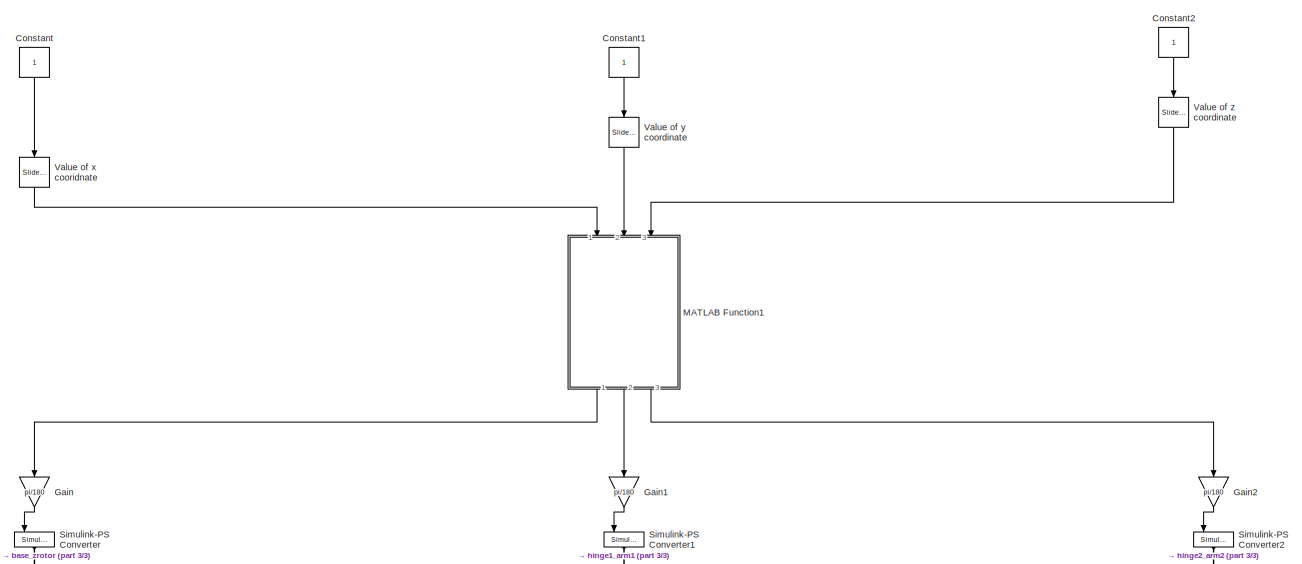
[diagram: root canvas - part 1/3, full width, top band]
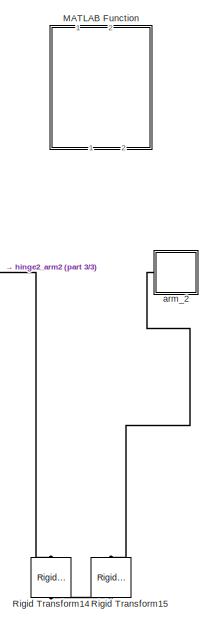
[diagram: root canvas - part 2/3, middle right region]
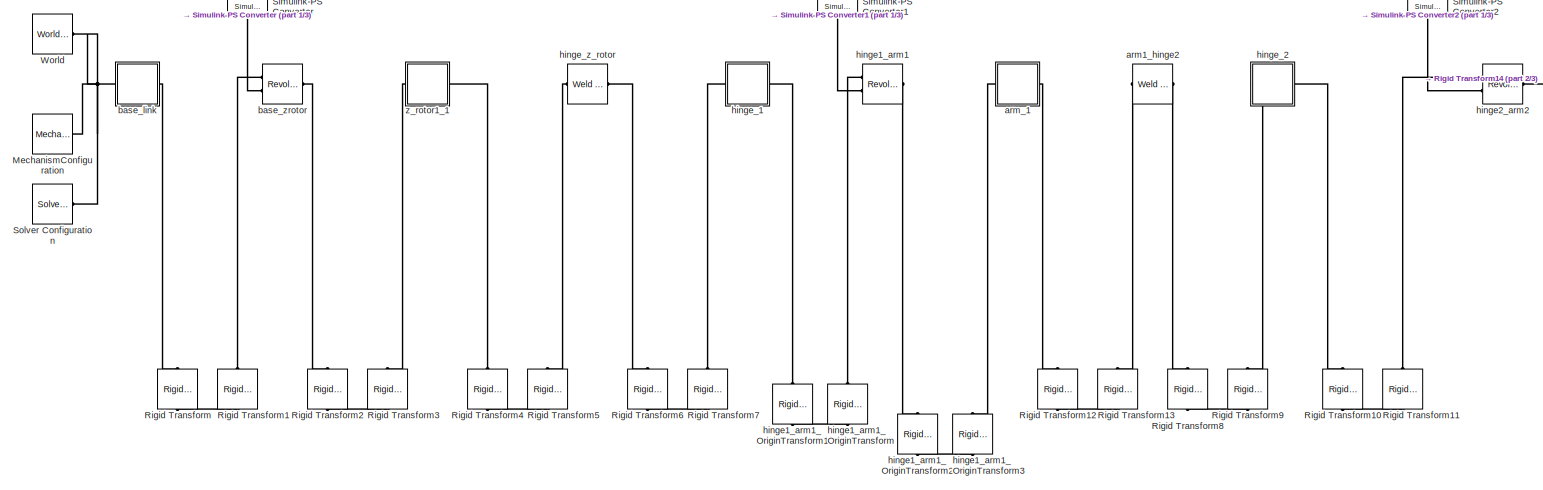
[diagram: root canvas - part 3/3, full width, bottom band]
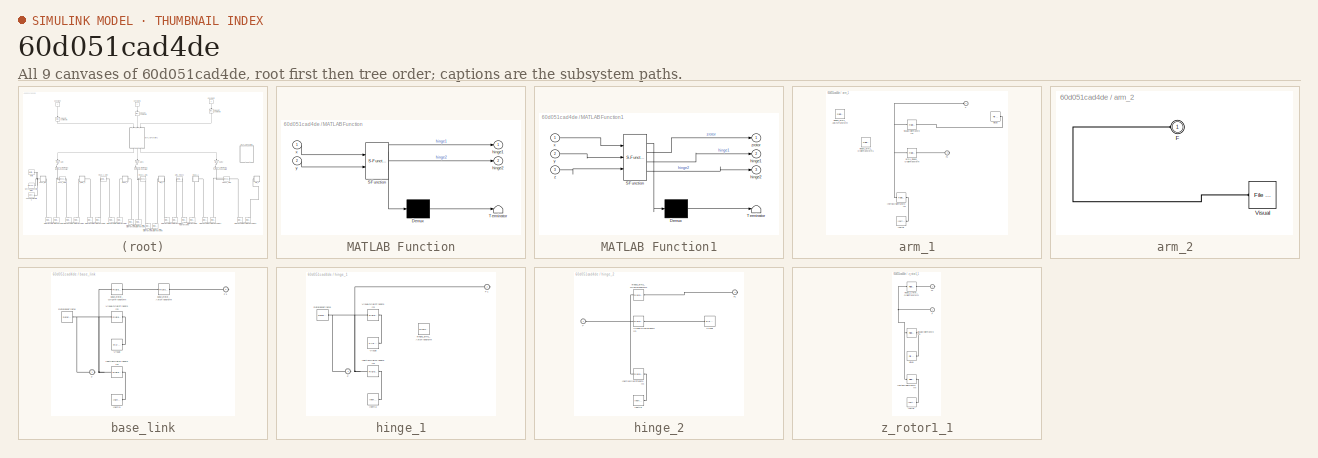
[diagram: thumbnail index - all 9 canvases of the model, root first then tree order]
MODEL slx_60d051cad4de
KIND model
CONFIG AbsTol = auto
CONFIG EnableMultiTasking = off
CONFIG FixedStep = 0.01
CONFIG MaxStep = 0.4
CONFIG MinStep = auto
CONFIG RelTol = 1e-3
CONFIG SampleTimeConstraint = Unconstrained
CONFIG SolverName = FixedStepAuto
CONFIG StartTime = 0.0
CONFIG StopTime = 40
BLOCK [Constant] Constant
  NameLocation = left
BLOCK [Constant] Constant1
  NameLocation = left
BLOCK [Constant] Constant2
  NameLocation = left
BLOCK [Gain] Gain
  Gain = pi/180
  NameLocation = left
BLOCK [Gain] Gain1
  Gain = pi/180
  NameLocation = left
BLOCK [Gain] Gain2
  Gain = pi/180
  NameLocation = left
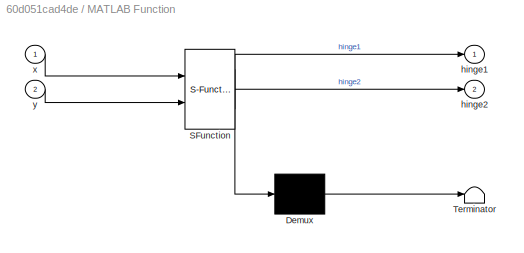
BLOCK [SubSystem] MATLAB Function
  Commented = on
  ErrorFcn = Stateflow.Translate.translate
  NameLocation = left
  PermitHierarchicalResolution = ExplicitOnly
  Ports = [2, 2]
  RequestExecContextInheritance = off
  SFBlockType = MATLAB Function
  TreatAsAtomicUnit = on
BLOCK [Demux] MATLAB Function/ Demux 
  Outputs = 1
  Ports = [1, 1]
BLOCK [S-Function] MATLAB Function/ SFunction 
  EnableBusSupport = on
  FunctionName = sf_sfun
  PortCounts = [2 3]
  Ports = [2, 3]
  SFcnIsStateOwnerBlock = off
  SFunctionDeploymentMode = off
  Tag = Stateflow S-Function 2
BLOCK [Terminator] MATLAB Function/ Terminator 
BLOCK [Outport] MATLAB Function/hinge1
BLOCK [Outport] MATLAB Function/hinge2
  Port = 2
BLOCK [Inport] MATLAB Function/x
BLOCK [Inport] MATLAB Function/y
  Port = 2
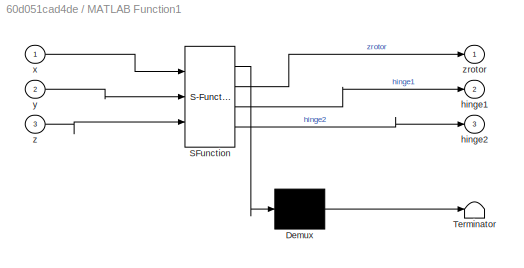
BLOCK [SubSystem] MATLAB Function1
  ErrorFcn = Stateflow.Translate.translate
  NameLocation = left
  PermitHierarchicalResolution = ExplicitOnly
  Ports = [3, 3]
  RequestExecContextInheritance = off
  SFBlockType = MATLAB Function
  TreatAsAtomicUnit = on
BLOCK [Demux] MATLAB Function1/ Demux 
  Outputs = 1
  Ports = [1, 1]
BLOCK [S-Function] MATLAB Function1/ SFunction 
  EnableBusSupport = on
  FunctionName = sf_sfun
  PortCounts = [3 4]
  Ports = [3, 4]
  SFcnIsStateOwnerBlock = off
  SFunctionDeploymentMode = off
  Tag = Stateflow S-Function 1
BLOCK [Terminator] MATLAB Function1/ Terminator 
BLOCK [Outport] MATLAB Function1/hinge1
  Port = 2
BLOCK [Outport] MATLAB Function1/hinge2
  Port = 3
BLOCK [Inport] MATLAB Function1/x
BLOCK [Inport] MATLAB Function1/y
  Port = 2
BLOCK [Inport] MATLAB Function1/z
  Port = 3
BLOCK [Outport] MATLAB Function1/zrotor
BLOCK [Reference] MechanismConfiguration  REF=sm_lib/Utilities/Mechanism
Configuration
  Ports = [0, 0, 0, 0, 0, 0, 1]
  SourceBlock = sm_lib/Utilities/Mechanism\nConfiguration
  SourceProductBaseCode = MS
  SourceType = Mechanism\nConfiguration
BLOCK [Reference] Rigid Transform  REF=sm_lib/Frames and
Transforms/Rigid
Transform
  NameLocation = left
  Ports = [0, 0, 0, 0, 0, 1, 1]
  SourceBlock = sm_lib/Frames and\nTransforms/Rigid\nTransform
  SourceProductBaseCode = MS
  SourceType = Rigid\nTransform
BLOCK [Reference] Rigid Transform1  REF=sm_lib/Frames and
Transforms/Rigid
Transform
  NameLocation = right
  Ports = [0, 0, 0, 0, 0, 1, 1]
  SourceBlock = sm_lib/Frames and\nTransforms/Rigid\nTransform
  SourceProductBaseCode = MS
  SourceType = Rigid\nTransform
BLOCK [Reference] Rigid Transform10  REF=sm_lib/Frames and
Transforms/Rigid
Transform
  NameLocation = left
  Ports = [0, 0, 0, 0, 0, 1, 1]
  SourceBlock = sm_lib/Frames and\nTransforms/Rigid\nTransform
  SourceProductBaseCode = MS
  SourceType = Rigid\nTransform
BLOCK [Reference] Rigid Transform11  REF=sm_lib/Frames and
Transforms/Rigid
Transform
  NameLocation = right
  Ports = [0, 0, 0, 0, 0, 1, 1]
  SourceBlock = sm_lib/Frames and\nTransforms/Rigid\nTransform
  SourceProductBaseCode = MS
  SourceType = Rigid\nTransform
BLOCK [Reference] Rigid Transform12  REF=sm_lib/Frames and
Transforms/Rigid
Transform
  NameLocation = left
  Ports = [0, 0, 0, 0, 0, 1, 1]
  SourceBlock = sm_lib/Frames and\nTransforms/Rigid\nTransform
  SourceProductBaseCode = MS
  SourceType = Rigid\nTransform
BLOCK [Reference] Rigid Transform13  REF=sm_lib/Frames and
Transforms/Rigid
Transform
  NameLocation = right
  Ports = [0, 0, 0, 0, 0, 1, 1]
  SourceBlock = sm_lib/Frames and\nTransforms/Rigid\nTransform
  SourceProductBaseCode = MS
  SourceType = Rigid\nTransform
BLOCK [Reference] Rigid Transform14  REF=sm_lib/Frames and
Transforms/Rigid
Transform
  NameLocation = left
  Ports = [0, 0, 0, 0, 0, 1, 1]
  SourceBlock = sm_lib/Frames and\nTransforms/Rigid\nTransform
  SourceProductBaseCode = MS
  SourceType = Rigid\nTransform
BLOCK [Reference] Rigid Transform15  REF=sm_lib/Frames and
Transforms/Rigid
Transform
  NameLocation = right
  Ports = [0, 0, 0, 0, 0, 1, 1]
  SourceBlock = sm_lib/Frames and\nTransforms/Rigid\nTransform
  SourceProductBaseCode = MS
  SourceType = Rigid\nTransform
BLOCK [Reference] Rigid Transform2  REF=sm_lib/Frames and
Transforms/Rigid
Transform
  NameLocation = left
  Ports = [0, 0, 0, 0, 0, 1, 1]
  SourceBlock = sm_lib/Frames and\nTransforms/Rigid\nTransform
  SourceProductBaseCode = MS
  SourceType = Rigid\nTransform
BLOCK [Reference] Rigid Transform3  REF=sm_lib/Frames and
Transforms/Rigid
Transform
  NameLocation = right
  Ports = [0, 0, 0, 0, 0, 1, 1]
  SourceBlock = sm_lib/Frames and\nTransforms/Rigid\nTransform
  SourceProductBaseCode = MS
  SourceType = Rigid\nTransform
BLOCK [Reference] Rigid Transform4  REF=sm_lib/Frames and
Transforms/Rigid
Transform
  NameLocation = left
  Ports = [0, 0, 0, 0, 0, 1, 1]
  SourceBlock = sm_lib/Frames and\nTransforms/Rigid\nTransform
  SourceProductBaseCode = MS
  SourceType = Rigid\nTransform
BLOCK [Reference] Rigid Transform5  REF=sm_lib/Frames and
Transforms/Rigid
Transform
  NameLocation = right
  Ports = [0, 0, 0, 0, 0, 1, 1]
  SourceBlock = sm_lib/Frames and\nTransforms/Rigid\nTransform
  SourceProductBaseCode = MS
  SourceType = Rigid\nTransform
BLOCK [Reference] Rigid Transform6  REF=sm_lib/Frames and
Transforms/Rigid
Transform
  NameLocation = left
  Ports = [0, 0, 0, 0, 0, 1, 1]
  SourceBlock = sm_lib/Frames and\nTransforms/Rigid\nTransform
  SourceProductBaseCode = MS
  SourceType = Rigid\nTransform
BLOCK [Reference] Rigid Transform7  REF=sm_lib/Frames and
Transforms/Rigid
Transform
  NameLocation = right
  Ports = [0, 0, 0, 0, 0, 1, 1]
  SourceBlock = sm_lib/Frames and\nTransforms/Rigid\nTransform
  SourceProductBaseCode = MS
  SourceType = Rigid\nTransform
BLOCK [Reference] Rigid Transform8  REF=sm_lib/Frames and
Transforms/Rigid
Transform
  NameLocation = left
  Ports = [0, 0, 0, 0, 0, 1, 1]
  SourceBlock = sm_lib/Frames and\nTransforms/Rigid\nTransform
  SourceProductBaseCode = MS
  SourceType = Rigid\nTransform
BLOCK [Reference] Rigid Transform9  REF=sm_lib/Frames and
Transforms/Rigid
Transform
  NameLocation = right
  Ports = [0, 0, 0, 0, 0, 1, 1]
  SourceBlock = sm_lib/Frames and\nTransforms/Rigid\nTransform
  SourceProductBaseCode = MS
  SourceType = Rigid\nTransform
BLOCK [Reference] Simulink-PS Converter  REF=nesl_utility/Simulink-PS
Converter
  NameLocation = left
  Ports = [3, 0, 0, 0, 0, 0, 1]
  SourceBlock = nesl_utility/Simulink-PS\nConverter
  SourceProductBaseCode = PW,SS
  SourceType = Simulink-PS\nConverter
BLOCK [Reference] Simulink-PS Converter1  REF=nesl_utility/Simulink-PS
Converter
  NameLocation = left
  Ports = [3, 0, 0, 0, 0, 0, 1]
  SourceBlock = nesl_utility/Simulink-PS\nConverter
  SourceProductBaseCode = PW,SS
  SourceType = Simulink-PS\nConverter
BLOCK [Reference] Simulink-PS Converter2  REF=nesl_utility/Simulink-PS
Converter
  NameLocation = left
  Ports = [3, 0, 0, 0, 0, 0, 1]
  SourceBlock = nesl_utility/Simulink-PS\nConverter
  SourceProductBaseCode = PW,SS
  SourceType = Simulink-PS\nConverter
BLOCK [Reference] Solver Configuration  REF=nesl_utility/Solver
Configuration
  Ports = [0, 0, 0, 0, 0, 0, 1]
  SourceBlock = nesl_utility/Solver\nConfiguration
  SourceProductBaseCode = PW,SS
  SourceType = Solver\nConfiguration
BLOCK [Reference] Value of x cooridnate  REF=simulink/Math
Operations/Slider
Gain
  NameLocation = right
  Ports = [1, 1]
  SourceBlock = simulink/Math\nOperations/Slider\nGain
  SourceProductBaseCode = SL
  SourceType = Slider Gain
BLOCK [Reference] Value of y coordinate  REF=simulink/Math
Operations/Slider
Gain
  NameLocation = left
  Ports = [1, 1]
  SourceBlock = simulink/Math\nOperations/Slider\nGain
  SourceProductBaseCode = SL
  SourceType = Slider Gain
BLOCK [Reference] Value of z coordinate  REF=simulink/Math
Operations/Slider
Gain
  NameLocation = left
  Ports = [1, 1]
  SourceBlock = simulink/Math\nOperations/Slider\nGain
  SourceProductBaseCode = SL
  SourceType = Slider Gain
BLOCK [Reference] World  REF=sm_lib/Frames and
Transforms/World Frame
  Ports = [0, 0, 0, 0, 0, 0, 1]
  SourceBlock = sm_lib/Frames and\nTransforms/World Frame
  SourceProductBaseCode = MS
  SourceType = World Frame
BLOCK [Reference] arm1_hinge2  REF=sm_lib/Joints/Weld Joint
  Ports = [0, 0, 0, 0, 0, 1, 1]
  SourceBlock = sm_lib/Joints/Weld Joint
  SourceProductBaseCode = MS
  SourceType = Weld Joint
BLOCK [SubSystem] arm_1
  Ports = [0, 0, 0, 0, 0, 1, 1]
  RequestExecContextInheritance = off
BLOCK [PMIOPort] arm_1/F
  Side = Left
BLOCK [PMIOPort] arm_1/F1
  Port = 2
  Side = Right
BLOCK [Reference] arm_1/Inertia  REF=sm_lib/Body Elements/Inertia
  Commented = on
  Ports = [0, 0, 0, 0, 0, 0, 1]
  SourceBlock = sm_lib/Body Elements/Inertia
  SourceProductBaseCode = MS
  SourceType = Inertia
BLOCK [Reference] arm_1/InertiaOriginTransform  REF=sm_lib/Frames and
Transforms/Rigid
Transform
  Commented = on
  Ports = [0, 0, 0, 0, 0, 1, 1]
  SourceBlock = sm_lib/Frames and\nTransforms/Rigid\nTransform
  SourceProductBaseCode = MS
  SourceType = Rigid\nTransform
BLOCK [Reference] arm_1/Visual  REF=sm_lib/Body Elements/File Solid
  Ports = [0, 0, 0, 0, 0, 0, 1]
  SourceBlock = sm_lib/Body Elements/File Solid
  SourceProductBaseCode = MS
  SourceType = File Solid
BLOCK [Reference] arm_1/VisualOriginTransform  REF=sm_lib/Frames and
Transforms/Rigid
Transform
  Ports = [0, 0, 0, 0, 0, 1, 1]
  SourceBlock = sm_lib/Frames and\nTransforms/Rigid\nTransform
  SourceProductBaseCode = MS
  SourceType = Rigid\nTransform
BLOCK [Reference] arm_1/arm1_hinge2_OriginTransform  REF=sm_lib/Frames and
Transforms/Rigid
Transform
  Ports = [0, 0, 0, 0, 0, 1, 1]
  SourceBlock = sm_lib/Frames and\nTransforms/Rigid\nTransform
  SourceProductBaseCode = MS
  SourceType = Rigid\nTransform
BLOCK [Reference] arm_1/hinge1_arm1_AxisInvTransform  REF=sm_lib/Frames and
Transforms/Rigid
Transform
  Commented = on
  Ports = [0, 0, 0, 0, 0, 1, 1]
  SourceBlock = sm_lib/Frames and\nTransforms/Rigid\nTransform
  SourceProductBaseCode = MS
  SourceType = Rigid\nTransform
BLOCK [Reference] arm_1/hinge1_arm1_OriginTransform1  REF=sm_lib/Frames and
Transforms/Rigid
Transform
  NameLocation = top
  Ports = [0, 0, 0, 0, 0, 1, 1]
  SourceBlock = sm_lib/Frames and\nTransforms/Rigid\nTransform
  SourceProductBaseCode = MS
  SourceType = Rigid\nTransform
BLOCK [SubSystem] arm_2
  Ports = [0, 0, 0, 0, 0, 1]
  RequestExecContextInheritance = off
BLOCK [PMIOPort] arm_2/F
  Side = Left
BLOCK [Reference] arm_2/Visual  REF=sm_lib/Body Elements/File Solid
  NameLocation = top
  Ports = [0, 0, 0, 0, 0, 0, 1]
  SourceBlock = sm_lib/Body Elements/File Solid
  SourceProductBaseCode = MS
  SourceType = File Solid
BLOCK [SubSystem] base_link
  Ports = [0, 0, 0, 0, 0, 1, 1]
  RequestExecContextInheritance = off
BLOCK [PMIOPort] base_link/F
  Side = Left
BLOCK [PMIOPort] base_link/F1
  Port = 2
  Side = Right
BLOCK [Reference] base_link/Inertia  REF=sm_lib/Body Elements/Inertia
  Commented = on
  Ports = [0, 0, 0, 0, 0, 0, 1]
  SourceBlock = sm_lib/Body Elements/Inertia
  SourceProductBaseCode = MS
  SourceType = Inertia
BLOCK [Reference] base_link/InertiaOriginTransform  REF=sm_lib/Frames and
Transforms/Rigid
Transform
  Commented = on
  Ports = [0, 0, 0, 0, 0, 1, 1]
  SourceBlock = sm_lib/Frames and\nTransforms/Rigid\nTransform
  SourceProductBaseCode = MS
  SourceType = Rigid\nTransform
BLOCK [Reference] base_link/ReferenceFrame  REF=sm_lib/Frames and
Transforms/Reference
Frame
  Commented = on
  Ports = [0, 0, 0, 0, 0, 0, 1]
  SourceBlock = sm_lib/Frames and\nTransforms/Reference\nFrame
  SourceProductBaseCode = MS
  SourceType = Reference\nFrame
BLOCK [Reference] base_link/Visual  REF=sm_lib/Body Elements/File Solid
  Ports = [0, 0, 0, 0, 0, 0, 1]
  SourceBlock = sm_lib/Body Elements/File Solid
  SourceProductBaseCode = MS
  SourceType = File Solid
BLOCK [Reference] base_link/VisualOriginTransform  REF=sm_lib/Frames and
Transforms/Rigid
Transform
  Ports = [0, 0, 0, 0, 0, 1, 1]
  SourceBlock = sm_lib/Frames and\nTransforms/Rigid\nTransform
  SourceProductBaseCode = MS
  SourceType = Rigid\nTransform
BLOCK [Reference] base_link/base_zrotor_AxisTransform  REF=sm_lib/Frames and
Transforms/Rigid
Transform
  Ports = [0, 0, 0, 0, 0, 1, 1]
  SourceBlock = sm_lib/Frames and\nTransforms/Rigid\nTransform
  SourceProductBaseCode = MS
  SourceType = Rigid\nTransform
BLOCK [Reference] base_link/base_zrotor_OriginTransform  REF=sm_lib/Frames and
Transforms/Rigid
Transform
  Ports = [0, 0, 0, 0, 0, 1, 1]
  SourceBlock = sm_lib/Frames and\nTransforms/Rigid\nTransform
  SourceProductBaseCode = MS
  SourceType = Rigid\nTransform
BLOCK [Reference] base_zrotor  REF=sm_lib/Joints/Revolute Joint
  Ports = [0, 0, 0, 0, 0, 2, 1]
  SourceBlock = sm_lib/Joints/Revolute Joint
  SourceProductBaseCode = MS
  SourceType = Revolute Joint
BLOCK [Reference] hinge1_arm1  REF=sm_lib/Joints/Revolute Joint
  Ports = [0, 0, 0, 0, 0, 2, 1]
  SourceBlock = sm_lib/Joints/Revolute Joint
  SourceProductBaseCode = MS
  SourceType = Revolute Joint
BLOCK [Reference] hinge1_arm1_OriginTransform  REF=sm_lib/Frames and
Transforms/Rigid
Transform
  NameLocation = right
  Ports = [0, 0, 0, 0, 0, 1, 1]
  SourceBlock = sm_lib/Frames and\nTransforms/Rigid\nTransform
  SourceProductBaseCode = MS
  SourceType = Rigid\nTransform
BLOCK [Reference] hinge1_arm1_OriginTransform1  REF=sm_lib/Frames and
Transforms/Rigid
Transform
  NameLocation = left
  Ports = [0, 0, 0, 0, 0, 1, 1]
  SourceBlock = sm_lib/Frames and\nTransforms/Rigid\nTransform
  SourceProductBaseCode = MS
  SourceType = Rigid\nTransform
BLOCK [Reference] hinge1_arm1_OriginTransform2  REF=sm_lib/Frames and
Transforms/Rigid
Transform
  NameLocation = left
  Ports = [0, 0, 0, 0, 0, 1, 1]
  SourceBlock = sm_lib/Frames and\nTransforms/Rigid\nTransform
  SourceProductBaseCode = MS
  SourceType = Rigid\nTransform
BLOCK [Reference] hinge1_arm1_OriginTransform3  REF=sm_lib/Frames and
Transforms/Rigid
Transform
  NameLocation = right
  Ports = [0, 0, 0, 0, 0, 1, 1]
  SourceBlock = sm_lib/Frames and\nTransforms/Rigid\nTransform
  SourceProductBaseCode = MS
  SourceType = Rigid\nTransform
BLOCK [Reference] hinge2_arm2  REF=sm_lib/Joints/Revolute Joint
  Ports = [0, 0, 0, 0, 0, 2, 1]
  SourceBlock = sm_lib/Joints/Revolute Joint
  SourceProductBaseCode = MS
  SourceType = Revolute Joint
BLOCK [SubSystem] hinge_1
  Ports = [0, 0, 0, 0, 0, 1, 1]
  RequestExecContextInheritance = off
BLOCK [PMIOPort] hinge_1/F
  Side = Left
BLOCK [PMIOPort] hinge_1/F1
  Port = 2
  Side = Right
BLOCK [Reference] hinge_1/Inertia  REF=sm_lib/Body Elements/Inertia
  Commented = on
  Ports = [0, 0, 0, 0, 0, 0, 1]
  SourceBlock = sm_lib/Body Elements/Inertia
  SourceProductBaseCode = MS
  SourceType = Inertia
BLOCK [Reference] hinge_1/InertiaOriginTransform  REF=sm_lib/Frames and
Transforms/Rigid
Transform
  Commented = on
  Ports = [0, 0, 0, 0, 0, 1, 1]
  SourceBlock = sm_lib/Frames and\nTransforms/Rigid\nTransform
  SourceProductBaseCode = MS
  SourceType = Rigid\nTransform
BLOCK [Reference] hinge_1/ReferenceFrame  REF=sm_lib/Frames and
Transforms/Reference
Frame
  Ports = [0, 0, 0, 0, 0, 0, 1]
  SourceBlock = sm_lib/Frames and\nTransforms/Reference\nFrame
  SourceProductBaseCode = MS
  SourceType = Reference\nFrame
BLOCK [Reference] hinge_1/Visual  REF=sm_lib/Body Elements/File Solid
  Ports = [0, 0, 0, 0, 0, 0, 1]
  SourceBlock = sm_lib/Body Elements/File Solid
  SourceProductBaseCode = MS
  SourceType = File Solid
BLOCK [Reference] hinge_1/VisualOriginTransform  REF=sm_lib/Frames and
Transforms/Rigid
Transform
  Ports = [0, 0, 0, 0, 0, 1, 1]
  SourceBlock = sm_lib/Frames and\nTransforms/Rigid\nTransform
  SourceProductBaseCode = MS
  SourceType = Rigid\nTransform
BLOCK [Reference] hinge_1/hinge1_arm1_AxisTransform  REF=sm_lib/Frames and
Transforms/Rigid
Transform
  Commented = on
  Ports = [0, 0, 0, 0, 0, 1, 1]
  SourceBlock = sm_lib/Frames and\nTransforms/Rigid\nTransform
  SourceProductBaseCode = MS
  SourceType = Rigid\nTransform
BLOCK [SubSystem] hinge_2
  Ports = [0, 0, 0, 0, 0, 1, 1]
  RequestExecContextInheritance = off
BLOCK [PMIOPort] hinge_2/F
  Side = Left
BLOCK [PMIOPort] hinge_2/F1
  Port = 2
  Side = Right
BLOCK [Reference] hinge_2/Inertia  REF=sm_lib/Body Elements/Inertia
  Commented = on
  Ports = [0, 0, 0, 0, 0, 0, 1]
  SourceBlock = sm_lib/Body Elements/Inertia
  SourceProductBaseCode = MS
  SourceType = Inertia
BLOCK [Reference] hinge_2/InertiaOriginTransform  REF=sm_lib/Frames and
Transforms/Rigid
Transform
  Commented = on
  Ports = [0, 0, 0, 0, 0, 1, 1]
  SourceBlock = sm_lib/Frames and\nTransforms/Rigid\nTransform
  SourceProductBaseCode = MS
  SourceType = Rigid\nTransform
BLOCK [Reference] hinge_2/Visual  REF=sm_lib/Body Elements/File Solid
  NameLocation = top
  Ports = [0, 0, 0, 0, 0, 0, 1]
  SourceBlock = sm_lib/Body Elements/File Solid
  SourceProductBaseCode = MS
  SourceType = File Solid
BLOCK [Reference] hinge_2/VisualOriginTransform  REF=sm_lib/Frames and
Transforms/Rigid
Transform
  Ports = [0, 0, 0, 0, 0, 1, 1]
  SourceBlock = sm_lib/Frames and\nTransforms/Rigid\nTransform
  SourceProductBaseCode = MS
  SourceType = Rigid\nTransform
BLOCK [Reference] hinge_2/hinge2_arm2_OriginTransform  REF=sm_lib/Frames and
Transforms/Rigid
Transform
  Ports = [0, 0, 0, 0, 0, 1, 1]
  SourceBlock = sm_lib/Frames and\nTransforms/Rigid\nTransform
  SourceProductBaseCode = MS
  SourceType = Rigid\nTransform
BLOCK [Reference] hinge_z_rotor  REF=sm_lib/Joints/Weld Joint
  Ports = [0, 0, 0, 0, 0, 1, 1]
  SourceBlock = sm_lib/Joints/Weld Joint
  SourceProductBaseCode = MS
  SourceType = Weld Joint
BLOCK [SubSystem] z_rotor1_1
  Ports = [0, 0, 0, 0, 0, 1, 1]
  RequestExecContextInheritance = off
BLOCK [PMIOPort] z_rotor1_1/F
  Side = Left
BLOCK [PMIOPort] z_rotor1_1/F1
  Port = 2
  Side = Right
BLOCK [Reference] z_rotor1_1/Inertia  REF=sm_lib/Body Elements/Inertia
  Commented = on
  Ports = [0, 0, 0, 0, 0, 0, 1]
  SourceBlock = sm_lib/Body Elements/Inertia
  SourceProductBaseCode = MS
  SourceType = Inertia
BLOCK [Reference] z_rotor1_1/InertiaOriginTransform  REF=sm_lib/Frames and
Transforms/Rigid
Transform
  Commented = on
  Ports = [0, 0, 0, 0, 0, 1, 1]
  SourceBlock = sm_lib/Frames and\nTransforms/Rigid\nTransform
  SourceProductBaseCode = MS
  SourceType = Rigid\nTransform
BLOCK [Reference] z_rotor1_1/Visual  REF=sm_lib/Body Elements/File Solid
  Ports = [0, 0, 0, 0, 0, 0, 1]
  SourceBlock = sm_lib/Body Elements/File Solid
  SourceProductBaseCode = MS
  SourceType = File Solid
BLOCK [Reference] z_rotor1_1/VisualOriginTransform  REF=sm_lib/Frames and
Transforms/Rigid
Transform
  Ports = [0, 0, 0, 0, 0, 1, 1]
  SourceBlock = sm_lib/Frames and\nTransforms/Rigid\nTransform
  SourceProductBaseCode = MS
  SourceType = Rigid\nTransform
BLOCK [Reference] z_rotor1_1/hinge_z_rotor_OriginTransform  REF=sm_lib/Frames and
Transforms/Rigid
Transform
  Ports = [0, 0, 0, 0, 0, 1, 1]
  SourceBlock = sm_lib/Frames and\nTransforms/Rigid\nTransform
  SourceProductBaseCode = MS
  SourceType = Rigid\nTransform
LINE Constant1:1 -> Value of y coordinate:1
LINE Constant2:1 -> Value of z coordinate:1
LINE Constant:1 -> Value of x cooridnate:1
LINE Gain1:1 -> Simulink-PS Converter1:1
LINE Gain2:1 -> Simulink-PS Converter2:1
LINE Gain:1 -> Simulink-PS Converter:1
LINE MATLAB Function1:1 -> Gain:1
LINE MATLAB Function1:2 -> Gain1:1
LINE MATLAB Function1:3 -> Gain2:1
LINE Value of x cooridnate:1 -> MATLAB Function1:1
LINE Value of y coordinate:1 -> MATLAB Function1:2
LINE Value of z coordinate:1 -> MATLAB Function1:3
PNET net1: MechanismConfiguration:RConn1 -- Solver Configuration:RConn1 -- World:RConn1 -- base_link:LConn1
PLINE Rigid Transform10:LConn1 -- hinge_2:RConn1
PLINE Rigid Transform10:RConn1 -- Rigid Transform11:LConn1
PLINE Rigid Transform11:RConn1 -- hinge2_arm2:LConn1
PLINE Rigid Transform12:LConn1 -- arm_1:RConn1
PLINE Rigid Transform12:RConn1 -- Rigid Transform13:LConn1
PLINE Rigid Transform13:RConn1 -- arm1_hinge2:LConn1
PLINE Rigid Transform14:LConn1 -- hinge2_arm2:RConn1
PLINE Rigid Transform14:RConn1 -- Rigid Transform15:LConn1
PLINE Rigid Transform15:RConn1 -- arm_2:LConn1
PLINE Rigid Transform1:LConn1 -- Rigid Transform:RConn1
PLINE Rigid Transform1:RConn1 -- base_zrotor:LConn1
PLINE Rigid Transform2:LConn1 -- base_zrotor:RConn1
PLINE Rigid Transform2:RConn1 -- Rigid Transform3:LConn1
PLINE Rigid Transform3:RConn1 -- z_rotor1_1:LConn1
PLINE Rigid Transform4:LConn1 -- z_rotor1_1:RConn1
PLINE Rigid Transform4:RConn1 -- Rigid Transform5:LConn1
PLINE Rigid Transform5:RConn1 -- hinge_z_rotor:LConn1
PLINE Rigid Transform6:LConn1 -- hinge_z_rotor:RConn1
PLINE Rigid Transform6:RConn1 -- Rigid Transform7:LConn1
PLINE Rigid Transform7:RConn1 -- hinge_1:LConn1
PLINE Rigid Transform8:LConn1 -- arm1_hinge2:RConn1
PLINE Rigid Transform8:RConn1 -- Rigid Transform9:LConn1
PLINE Rigid Transform9:RConn1 -- hinge_2:LConn1
PLINE Rigid Transform:LConn1 -- base_link:RConn1
PLINE Simulink-PS Converter1:RConn1 -- hinge1_arm1:LConn2
PLINE Simulink-PS Converter2:RConn1 -- hinge2_arm2:LConn2
PLINE Simulink-PS Converter:RConn1 -- base_zrotor:LConn2
PLINE arm_1/F1:RConn1 -- arm_1/arm1_hinge2_OriginTransform:RConn1
PNET net2: arm_1/F:RConn1 -- arm_1/InertiaOriginTransform:LConn1 -- arm_1/VisualOriginTransform:LConn1 -- arm_1/arm1_hinge2_OriginTransform:LConn1
PLINE arm_1/Inertia:RConn1 -- arm_1/InertiaOriginTransform:RConn1
PLINE arm_1/Visual:RConn1 -- arm_1/VisualOriginTransform:RConn1
PLINE arm_1:LConn1 -- hinge1_arm1_OriginTransform3:RConn1
PLINE arm_2/F:RConn1 -- arm_2/Visual:RConn1
PLINE base_link/F1:RConn1 -- base_link/base_zrotor_AxisTransform:RConn1
PNET net3: base_link/F:RConn1 -- base_link/InertiaOriginTransform:LConn1 -- base_link/ReferenceFrame:RConn1 -- base_link/VisualOriginTransform:LConn1 -- base_link/base_zrotor_OriginTransform:LConn1
PLINE base_link/Inertia:RConn1 -- base_link/InertiaOriginTransform:RConn1
PLINE base_link/Visual:RConn1 -- base_link/VisualOriginTransform:RConn1
PLINE base_link/base_zrotor_AxisTransform:LConn1 -- base_link/base_zrotor_OriginTransform:RConn1
PLINE hinge1_arm1:LConn1 -- hinge1_arm1_OriginTransform:RConn1
PLINE hinge1_arm1:RConn1 -- hinge1_arm1_OriginTransform2:LConn1
PLINE hinge1_arm1_OriginTransform1:LConn1 -- hinge_1:RConn1
PLINE hinge1_arm1_OriginTransform1:RConn1 -- hinge1_arm1_OriginTransform:LConn1
PLINE hinge1_arm1_OriginTransform2:RConn1 -- hinge1_arm1_OriginTransform3:LConn1
PNET net4: hinge_1/F1:RConn1 -- hinge_1/F:RConn1 -- hinge_1/InertiaOriginTransform:LConn1 -- hinge_1/ReferenceFrame:RConn1 -- hinge_1/VisualOriginTransform:LConn1
PLINE hinge_1/Inertia:RConn1 -- hinge_1/InertiaOriginTransform:RConn1
PLINE hinge_1/Visual:RConn1 -- hinge_1/VisualOriginTransform:RConn1
PLINE hinge_2/F1:RConn1 -- hinge_2/hinge2_arm2_OriginTransform:RConn1
PNET net5: hinge_2/F:RConn1 -- hinge_2/InertiaOriginTransform:LConn1 -- hinge_2/VisualOriginTransform:LConn1 -- hinge_2/hinge2_arm2_OriginTransform:LConn1
PLINE hinge_2/Inertia:RConn1 -- hinge_2/InertiaOriginTransform:RConn1
PLINE hinge_2/Visual:RConn1 -- hinge_2/VisualOriginTransform:RConn1
PLINE z_rotor1_1/F1:RConn1 -- z_rotor1_1/hinge_z_rotor_OriginTransform:RConn1
PNET net6: z_rotor1_1/F:RConn1 -- z_rotor1_1/InertiaOriginTransform:LConn1 -- z_rotor1_1/VisualOriginTransform:LConn1 -- z_rotor1_1/hinge_z_rotor_OriginTransform:LConn1
PLINE z_rotor1_1/Inertia:RConn1 -- z_rotor1_1/InertiaOriginTransform:RConn1
PLINE z_rotor1_1/Visual:RConn1 -- z_rotor1_1/VisualOriginTransform:RConn1
note: PNET lines group multi-terminal physical nets as a canonical sorted terminal list (undirected conserving connections); 2-terminal nets keep the pairwise PLINE form
CHART MATLAB Function1 states=1 transitions=1
  STATE_LABEL 'eML_blk_kernel()'
  STATE_LABEL 'SCRIPT:\nfunction [zrotor,hinge1,hinge2] = fcn(x,y,z)\n\nl1 = 39.192\nl2 = 39.192\n\na1=45;\na2=45;\na3 = 10\n\na1 = deg2rad(a1);\na2 = deg2rad(a2);\na3 = deg2rad(a3);\n\nAngle = [a1;a2;a3]                 \nXd = [x;y;z]                      \n%J = [-l2*sin(a1+a2) - l1*sin(a1), -(l2*sin(a1+a2)); l2*cos(a1+a2) + l1*cos(a1), l2*cos(a1+a2)];\n\nfor n = 1:40\nX  = [(cos(a1+a2)*l2 + l1*cos(a1))*cos(a3); (cos(a1+a2)*l2 + ...<+543ch>'
CHART MATLAB Function states=1 transitions=1
  STATE_LABEL 'eML_blk_kernel()'
  STATE_LABEL 'SCRIPT:\nfunction [hinge1, hinge2] = fcn(x,y)\n\nl1 = 39.192\nl2 = 39.192\n\na1=45;\na2=-45;\n\na1 = deg2rad(a1);\na2 = deg2rad(a2);\n\nAngle = [a1;a2]                 %PRINT\nXd = [x;y]                      %PRINT\n%J = [-l2*sin(a1+a2) - l1*sin(a1), -(l2*sin(a1+a2)); l2*cos(a1+a2) + l1*cos(a1), l2*cos(a1+a2)];\n\nfor n = 1:10\nX  = [cos(a1+a2)*l2 + l1*cos(a1);sin(a1+a2)*l2+l1*sin(a1)];\nJ = [-l2*sin(a1+a2) - l1*si...<+270ch>'
CHART  states=0 transitions=0
CHART  states=0 transitions=0
